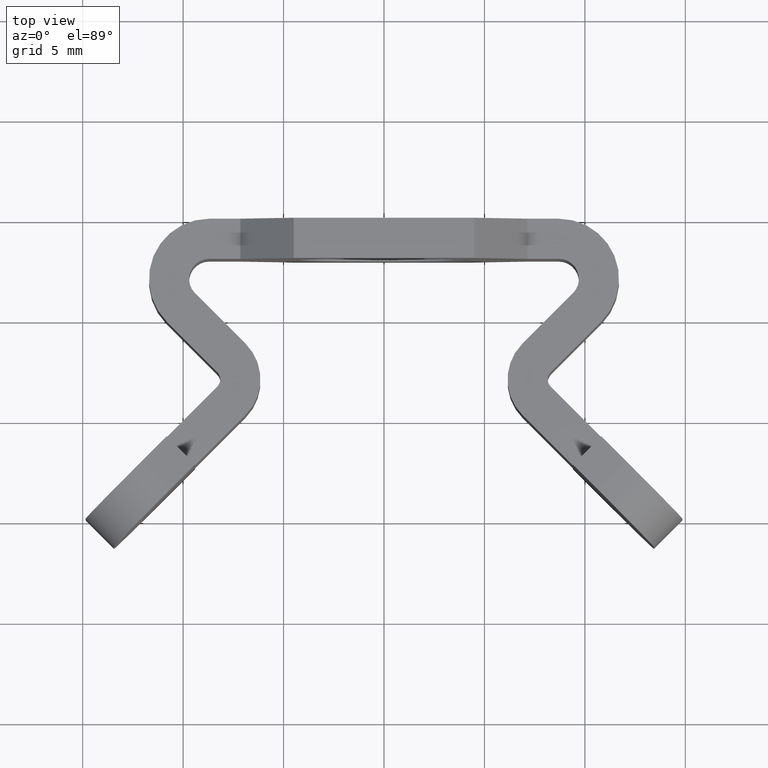
[diagram: clean part render]
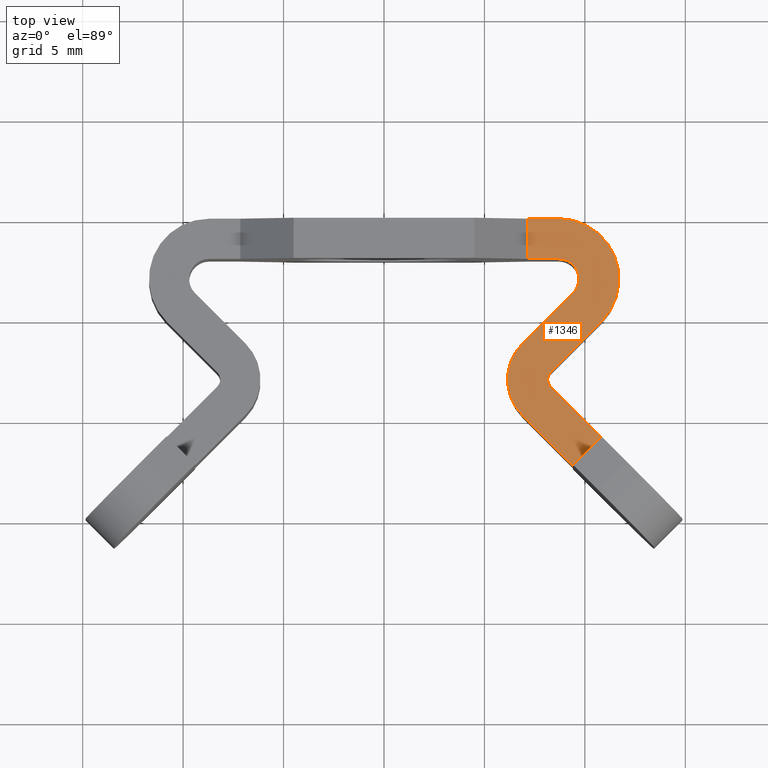
[diagram: same view with one face highlighted and labeled with its STEP entity id]
A machine part, top view. The second image highlights one B-rep face of the part: STEP entity #1346.
In plain terms, the highlighted planar face has unit normal (0, 0, 1).
Its self-contained STEP definition (entity closure, byte-faithful):
#115=CARTESIAN_POINT('',(8.700000000014370,-4.547474E-013,3.999999999983881));
#116=VERTEX_POINT('',#115);
#186=CARTESIAN_POINT('',(7.149999999971442,0.0,3.999999999983881));
#187=VERTEX_POINT('',#186);
#194=CARTESIAN_POINT('',(8.700000000014370,1.206563E-012,3.999999999983881));
#195=DIRECTION('',(-1.0,1.017282E-013,0.0));
#196=VECTOR('',#195,1.550000000042928);
#197=LINE('',#194,#196);
#198=EDGE_CURVE('',#116,#187,#197,.T.);
#229=CARTESIAN_POINT('',(10.821320562330584,-5.121319437570037,3.999999999983068));
#230=VERTEX_POINT('',#229);
#231=CARTESIAN_POINT('',(8.700000000014372,-2.999999715339072,3.999999999983778));
#232=DIRECTION('',(0.0,0.0,-1.0));
#233=DIRECTION('',(0.707106921200604,-0.707106641172464,0.0));
#234=AXIS2_PLACEMENT_3D('',#231,#232,#233);
#235=CIRCLE('',#234,2.999999715338592);
#236=EDGE_CURVE('',#116,#230,#235,.T.);
#262=CARTESIAN_POINT('',(8.296194004333756,-7.646446995566294,3.999999999982981));
#263=VERTEX_POINT('',#262);
#264=CARTESIAN_POINT('',(10.821320562330584,-5.121319437570037,3.999999999983068));
#265=DIRECTION('',(-0.707106641172514,-0.707106921200553,-2.437407E-014));
#266=VECTOR('',#265,3.571068932134053);
#267=LINE('',#264,#266);
#268=EDGE_CURVE('',#230,#263,#267,.T.);
#292=CARTESIAN_POINT('',(8.296194074335745,-8.353553074119191,3.999999999982958));
#293=VERTEX_POINT('',#292);
#294=CARTESIAN_POINT('',(8.649747148623193,-7.999999999841749,3.999999999982970));
#295=DIRECTION('',(0.0,0.0,1.000000000000000));
#296=DIRECTION('',(-0.707106921200640,0.707106641172428,0.0));
#297=AXIS2_PLACEMENT_3D('',#294,#295,#296);
#298=CIRCLE('',#297,0.499999552668946);
#299=EDGE_CURVE('',#263,#293,#298,.T.);
#336=CARTESIAN_POINT('',(6.881980511941492,-9.767766636471151,3.999999999982908));
#337=VERTEX_POINT('',#336);
#344=CARTESIAN_POINT('',(6.881980161931551,-6.232233713221831,3.999999999983029));
#345=VERTEX_POINT('',#344);
#346=CARTESIAN_POINT('',(8.649747148623193,-7.999999999841749,3.999999999982970));
#347=DIRECTION('',(0.0,0.0,-1.000000000000000));
#348=DIRECTION('',(-0.707106921200640,0.707106641172428,0.0));
#349=AXIS2_PLACEMENT_3D('',#346,#347,#348);
#350=CIRCLE('',#349,2.499999552668946);
#351=EDGE_CURVE('',#337,#345,#350,.T.);
#368=CARTESIAN_POINT('',(9.407106719928834,-3.707106155225574,3.999999999983116));
#369=VERTEX_POINT('',#368);
#370=CARTESIAN_POINT('',(6.881980161931551,-6.232233713221831,3.999999999983029));
#371=DIRECTION('',(0.707106641172578,0.707106921200489,2.437407E-014));
#372=VECTOR('',#371,3.571068932134375);
#373=LINE('',#370,#372);
#374=EDGE_CURVE('',#345,#369,#373,.T.);
#408=CARTESIAN_POINT('',(8.699999999987085,-2.0,3.999999999983812));
#409=VERTEX_POINT('',#408);
#410=CARTESIAN_POINT('',(8.700000000014372,-2.999999715339072,3.999999999983778));
#411=DIRECTION('',(0.0,0.0,-1.0));
#412=DIRECTION('',(0.707106921200604,-0.707106641172464,0.0));
#413=AXIS2_PLACEMENT_3D('',#410,#411,#412);
#414=CIRCLE('',#413,0.999999715338592);
#415=EDGE_CURVE('',#409,#369,#414,.T.);
#601=CARTESIAN_POINT('',(7.149999999971442,-2.0,3.999999999983812));
#602=VERTEX_POINT('',#601);
#609=CARTESIAN_POINT('',(7.149999999971442,0.0,3.999999999983881));
#610=DIRECTION('',(0.0,-1.0,0.0));
#611=VECTOR('',#610,2.0);
#612=LINE('',#609,#611);
#613=EDGE_CURVE('',#187,#602,#612,.T.);
#737=CARTESIAN_POINT('',(8.699999999987085,-2.0,3.999999999983812));
#738=DIRECTION('',(-1.0,0.0,0.0));
#739=VECTOR('',#738,1.550000000015643);
#740=LINE('',#737,#739);
#741=EDGE_CURVE('',#409,#602,#740,.T.);
#999=CARTESIAN_POINT('',(9.407107000033648,-12.292893124632883,3.999999999982871));
#1000=VERTEX_POINT('',#999);
#1007=CARTESIAN_POINT('',(9.407107000033648,-12.292893124632883,3.999999999982871));
#1008=DIRECTION('',(-0.707106781176806,0.707106781196289,1.044603E-014));
#1009=VECTOR('',#1008,3.571068126216668);
#1010=LINE('',#1007,#1009);
#1011=EDGE_CURVE('',#1000,#337,#1010,.T.);
#1117=CARTESIAN_POINT('',(10.821320562426990,-10.878679562278649,3.999999999982871));
#1118=VERTEX_POINT('',#1117);
#1119=CARTESIAN_POINT('',(8.296194074335745,-8.353553074119191,3.999999999982958));
#1120=DIRECTION('',(0.707106781176997,-0.707106781196098,-2.437408E-014));
#1121=VECTOR('',#1120,3.571068126214417);
#1122=LINE('',#1119,#1121);
#1123=EDGE_CURVE('',#293,#1118,#1122,.T.);
#1316=CARTESIAN_POINT('',(10.821320562426536,-10.878679562279103,3.999999999982871));
#1317=DIRECTION('',(-0.707106781196325,-0.707106781176770,0.0));
#1318=VECTOR('',#1317,2.000000000000124);
#1319=LINE('',#1316,#1318);
#1320=EDGE_CURVE('',#1118,#1000,#1319,.T.);
#1327=CARTESIAN_POINT('',(11.702551873153425,0.002552157800437,3.999999999983881));
#1328=DIRECTION('',(0.0,0.0,1.0));
#1329=DIRECTION('',(-1.0,1.017282E-013,0.0));
#1330=AXIS2_PLACEMENT_3D('',#1327,#1328,#1329);
#1331=PLANE('',#1330);
#1332=ORIENTED_EDGE('',*,*,#198,.T.);
#1333=ORIENTED_EDGE('',*,*,#613,.T.);
#1334=ORIENTED_EDGE('',*,*,#741,.F.);
#1335=ORIENTED_EDGE('',*,*,#415,.T.);
#1336=ORIENTED_EDGE('',*,*,#374,.F.);
#1337=ORIENTED_EDGE('',*,*,#351,.F.);
#1338=ORIENTED_EDGE('',*,*,#1011,.F.);
#1339=ORIENTED_EDGE('',*,*,#1320,.F.);
#1340=ORIENTED_EDGE('',*,*,#1123,.F.);
#1341=ORIENTED_EDGE('',*,*,#299,.F.);
#1342=ORIENTED_EDGE('',*,*,#268,.F.);
#1343=ORIENTED_EDGE('',*,*,#236,.F.);
#1344=EDGE_LOOP('',(#1332,#1333,#1334,#1335,#1336,#1337,#1338,#1339,#1340,#1341,#1342,#1343));
#1345=FACE_OUTER_BOUND('',#1344,.T.);
#1346=ADVANCED_FACE('',(#1345),#1331,.T.);